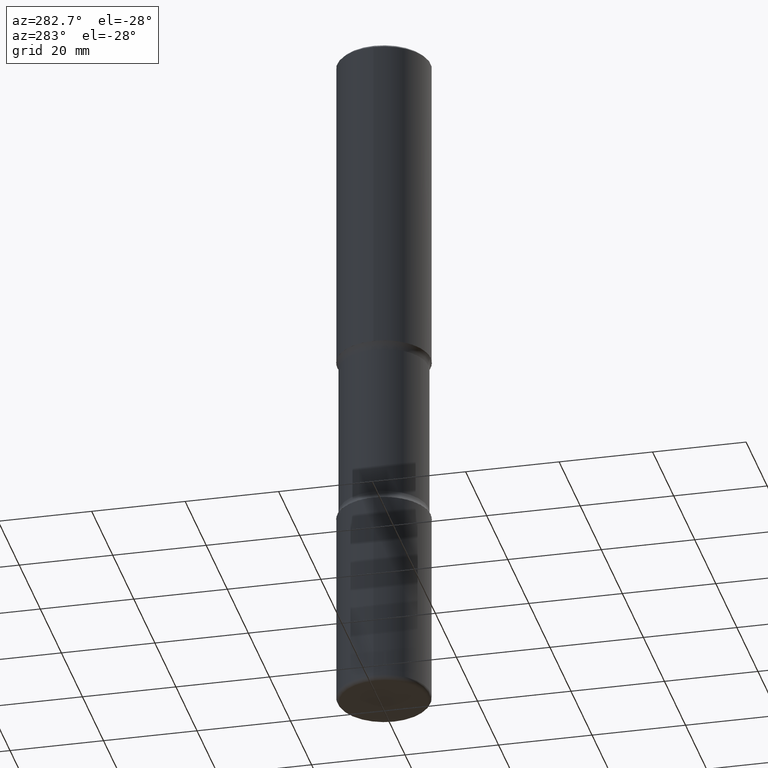
[diagram: clean part render]
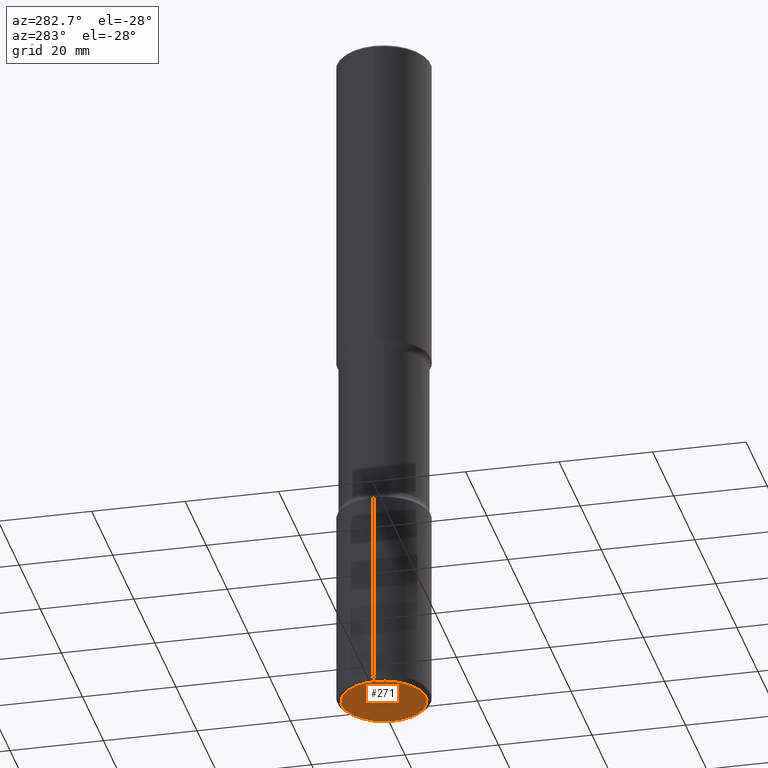
[diagram: same view with one face highlighted and labeled with its STEP entity id]
A machine part, auxiliary view. The second image highlights one B-rep face of the part: STEP entity #271.
In plain terms, the highlighted planar face has unit normal (0, -0, -1).
Its self-contained STEP definition (entity closure, byte-faithful):
#5 = CIRCLE ( 'NONE', #272, 0.3543000000000003924 ) ;
#17 = VERTEX_POINT ( 'NONE', #202 ) ;
#132 = AXIS2_PLACEMENT_3D ( 'NONE', #554, #452, #139 ) ;
#139 = DIRECTION ( 'NONE',  ( -1.000000000000000000, 6.982962677686265922E-15, -4.876176775795935793E-29 ) ) ;
#141 = CARTESIAN_POINT ( 'NONE',  ( 1.444171603492632270E-28, -2.061894304653819197E-14, -5.905499999999999972 ) ) ;
#173 = AXIS2_PLACEMENT_3D ( 'NONE', #141, #239, #502 ) ;
#202 = CARTESIAN_POINT ( 'NONE',  ( 0.3543000000000003924, -2.309300672324243991E-14, -5.905499999999999972 ) ) ;
#203 = PLANE ( 'NONE',  #132 ) ;
#216 = EDGE_CURVE ( 'NONE', #17, #294, #558, .T. ) ;
#239 = DIRECTION ( 'NONE',  ( -2.445468806185136597E-29, 3.491481338843145583E-15, 1.000000000000000000 ) ) ;
#257 = FACE_OUTER_BOUND ( 'NONE', #388, .T. ) ;
#271 = ADVANCED_FACE ( 'NONE', ( #257 ), #203, .T. ) ;
#272 = AXIS2_PLACEMENT_3D ( 'NONE', #326, #367, #500 ) ;
#294 = VERTEX_POINT ( 'NONE', #505 ) ;
#326 = CARTESIAN_POINT ( 'NONE',  ( 1.444171603492632270E-28, -2.061894304653819197E-14, -5.905499999999999972 ) ) ;
#335 = EDGE_CURVE ( 'NONE', #294, #17, #5, .T. ) ;
#367 = DIRECTION ( 'NONE',  ( -2.445468806185136597E-29, 3.491481338843145583E-15, 1.000000000000000000 ) ) ;
#370 = ORIENTED_EDGE ( 'NONE', *, *, #216, .F. ) ;
#382 = ORIENTED_EDGE ( 'NONE', *, *, #335, .F. ) ;
#388 = EDGE_LOOP ( 'NONE', ( #370, #382 ) ) ;
#452 = DIRECTION ( 'NONE',  ( 2.438088387897960049E-29, -3.491481338843145188E-15, -1.000000000000000000 ) ) ;
#500 = DIRECTION ( 'NONE',  ( 1.000000000000000000, -6.982962677686265133E-15, 0.000000000000000000 ) ) ;
#502 = DIRECTION ( 'NONE',  ( 1.000000000000000000, -6.982962677686265133E-15, 0.000000000000000000 ) ) ;
#505 = CARTESIAN_POINT ( 'NONE',  ( -0.3543000000000003924, -1.789273103242020530E-14, -5.905499999999999972 ) ) ;
#554 = CARTESIAN_POINT ( 'NONE',  ( 1.723044131305019458E-29, -3.883280511437256617E-14, -5.905499999999998195 ) ) ;
#558 = CIRCLE ( 'NONE', #173, 0.3543000000000003924 ) ;